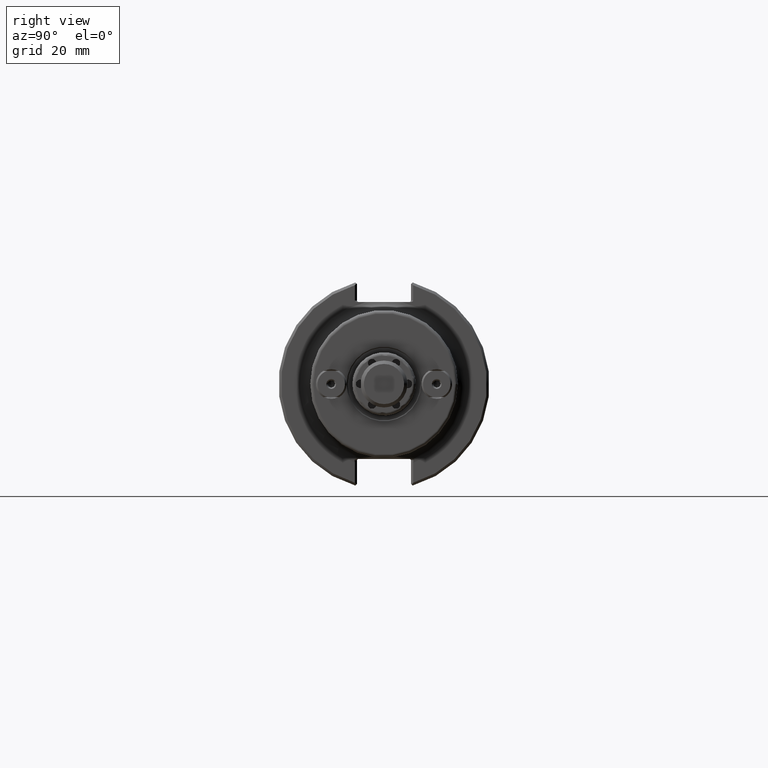
[diagram: clean part render]
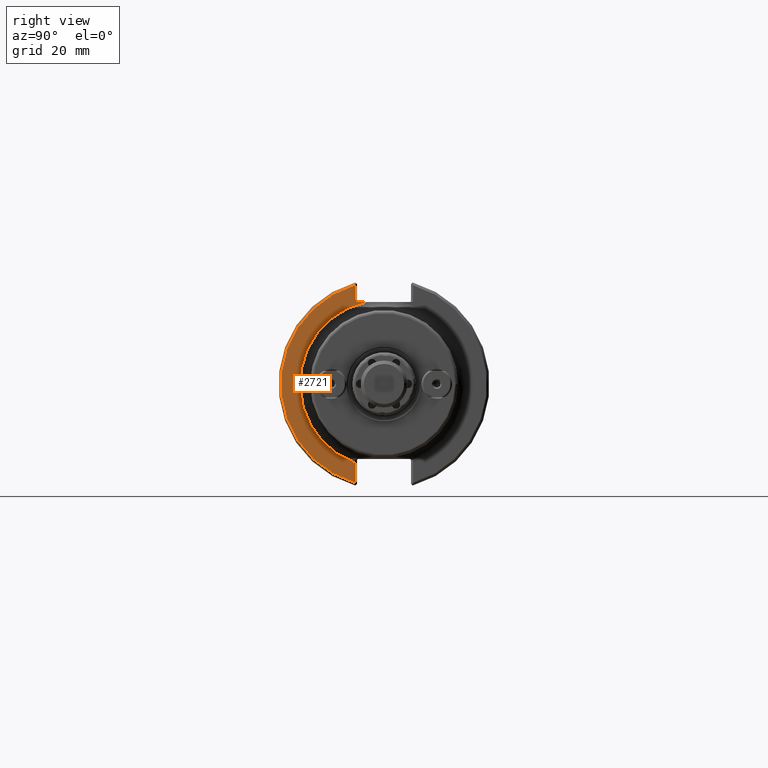
[diagram: same view with one face highlighted and labeled with its STEP entity id]
A machine part, right view. The second image highlights one B-rep face of the part: STEP entity #2721.
In plain terms, the highlighted planar face has unit normal (1, 0, 0).
Its self-contained STEP definition (entity closure, byte-faithful):
#276=ELLIPSE('',#2960,0.0282842712474619,0.02);
#389=PLANE('',#2959);
#485=FACE_OUTER_BOUND('',#697,.T.);
#697=EDGE_LOOP('',(#2051,#2052,#2053,#2054,#2055,#2056));
#942=CIRCLE('',#2958,0.995);
#943=CIRCLE('',#2961,1.22);
#1029=LINE('',#4309,#1166);
#1030=LINE('',#4313,#1167);
#1031=LINE('',#4316,#1168);
#1166=VECTOR('',#3401,0.104016410464679);
#1167=VECTOR('',#3404,0.178202973846928);
#1168=VECTOR('',#3407,0.236929166221211);
#1355=VERTEX_POINT('',#4276);
#1356=VERTEX_POINT('',#4288);
#1358=VERTEX_POINT('',#4308);
#1359=VERTEX_POINT('',#4310);
#1360=VERTEX_POINT('',#4312);
#1361=VERTEX_POINT('',#4314);
#1629=EDGE_CURVE('',#1355,#1356,#942,.T.);
#1632=EDGE_CURVE('',#1355,#1358,#1029,.T.);
#1633=EDGE_CURVE('',#1359,#1358,#276,.T.);
#1634=EDGE_CURVE('',#1360,#1359,#1030,.T.);
#1635=EDGE_CURVE('',#1361,#1360,#943,.T.);
#1636=EDGE_CURVE('',#1356,#1361,#1031,.T.);
#2051=ORIENTED_EDGE('',*,*,#1629,.F.);
#2052=ORIENTED_EDGE('',*,*,#1632,.T.);
#2053=ORIENTED_EDGE('',*,*,#1633,.F.);
#2054=ORIENTED_EDGE('',*,*,#1634,.F.);
#2055=ORIENTED_EDGE('',*,*,#1635,.F.);
#2056=ORIENTED_EDGE('',*,*,#1636,.F.);
#2721=ADVANCED_FACE('',(#485),#389,.T.);
#2958=AXIS2_PLACEMENT_3D('',#4289,#3397,#3398);
#2959=AXIS2_PLACEMENT_3D('',#4307,#3399,#3400);
#2960=AXIS2_PLACEMENT_3D('',#4311,#3402,#3403);
#2961=AXIS2_PLACEMENT_3D('',#4315,#3405,#3406);
#3397=DIRECTION('center_axis',(1.,1.16523256636576E-36,0.));
#3398=DIRECTION('ref_axis',(1.16523256636576E-36,-1.,1.22464679914735E-16));
#3399=DIRECTION('center_axis',(1.,1.16523256636576E-36,0.));
#3400=DIRECTION('ref_axis',(0.,0.,-1.));
#3401=DIRECTION('',(1.16523256636576E-36,-1.,-3.67894043826846E-32));
#3402=DIRECTION('center_axis',(1.,1.16523256636576E-36,0.));
#3403=DIRECTION('ref_axis',(0.,-1.,-1.93170824149086E-16));
#3404=DIRECTION('',(0.,0.,-1.));
#3405=DIRECTION('center_axis',(-1.,-1.16523256636576E-36,0.));
#3406=DIRECTION('ref_axis',(0.,-1.,0.));
#3407=DIRECTION('',(0.,0.,-1.));
#4276=CARTESIAN_POINT('',(0.75,-0.212699318287579,0.972));
#4288=CARTESIAN_POINT('',(0.75,-0.34499999999966,-0.933273807625734));
#4289=CARTESIAN_POINT('Origin',(0.75,-7.34096516810427E-37,0.));
#4307=CARTESIAN_POINT('Origin',(0.75,1.0625,0.));
#4308=CARTESIAN_POINT('',(0.75,-0.316715728752257,0.972));
#4309=CARTESIAN_POINT('',(0.75,0.53125000000014,0.972));
#4310=CARTESIAN_POINT('',(0.75,-0.344999999999719,0.992));
#4311=CARTESIAN_POINT('Origin',(0.75,-0.316715728752257,0.992));
#4312=CARTESIAN_POINT('',(0.75,-0.344999999999719,1.17020297384693));
#4313=CARTESIAN_POINT('',(0.75,-0.344999999999719,0.486));
#4314=CARTESIAN_POINT('',(0.75,-0.34499999999966,-1.17020297384695));
#4315=CARTESIAN_POINT('Origin',(0.75,-7.34096516810427E-37,0.));
#4316=CARTESIAN_POINT('',(0.75,-0.34499999999966,-0.444));